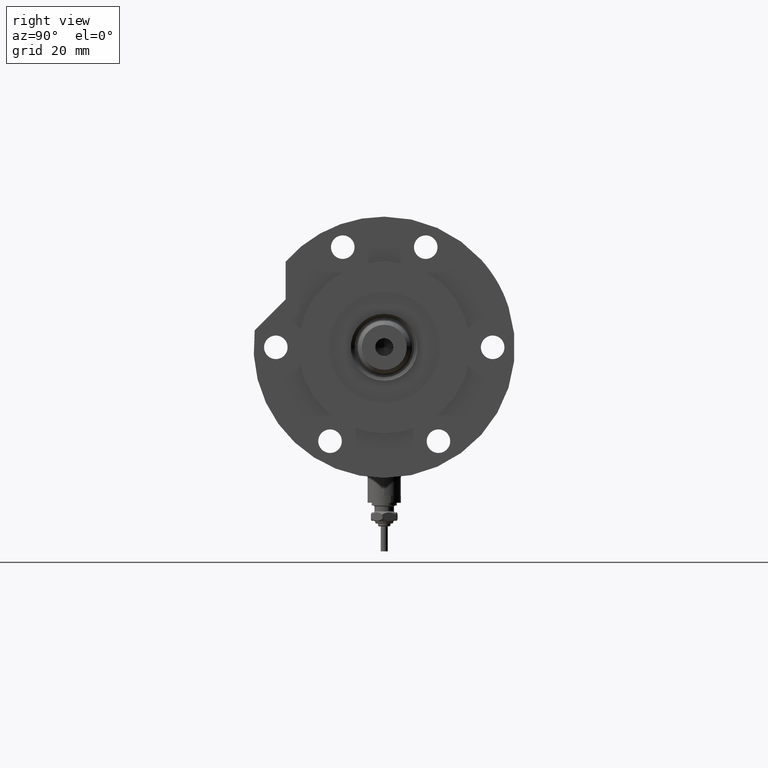
[diagram: clean part render]
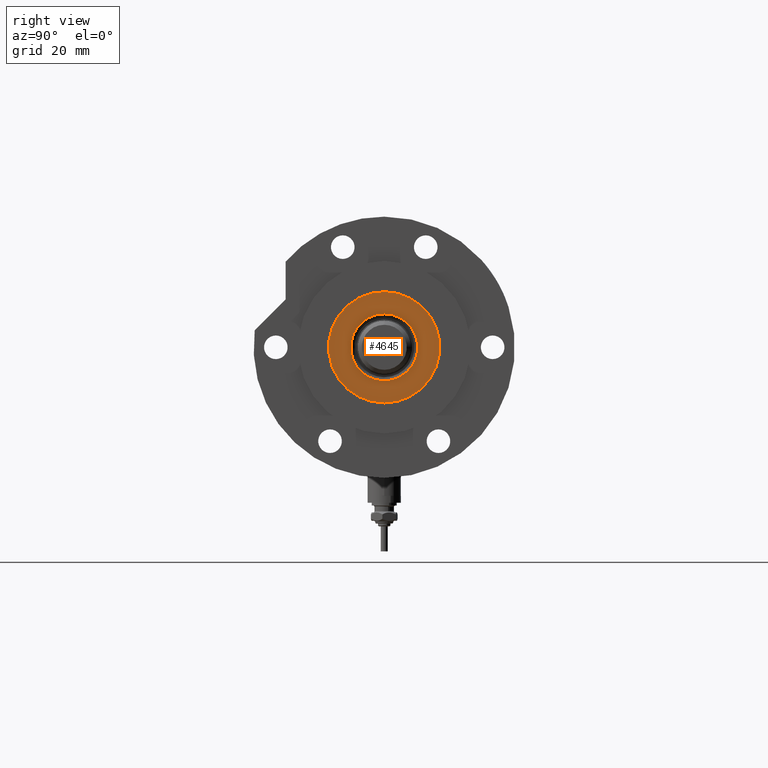
[diagram: same view with one face highlighted and labeled with its STEP entity id]
A machine part, right view. The second image highlights one B-rep face of the part: STEP entity #4645.
In plain terms, the highlighted planar face has unit normal (1, 0, -0).
Its self-contained STEP definition (entity closure, byte-faithful):
#19 = CIRCLE ( 'NONE', #143, 19.99999999999999645 ) ;
#113 = EDGE_LOOP ( 'NONE', ( #2888, #7330 ) ) ;
#120 = EDGE_CURVE ( 'NONE', #6263, #6694, #1236, .T. ) ;
#143 = AXIS2_PLACEMENT_3D ( 'NONE', #1498, #7541, #6332 ) ;
#435 = CARTESIAN_POINT ( 'NONE',  ( 0.000000000000000000, 0.000000000000000000, 33.50000000000000000 ) ) ;
#549 = DIRECTION ( 'NONE',  ( 1.000000000000000000, 0.000000000000000000, -0.000000000000000000 ) ) ;
#850 = AXIS2_PLACEMENT_3D ( 'NONE', #435, #7816, #4785 ) ;
#882 = ORIENTED_EDGE ( 'NONE', *, *, #6654, .T. ) ;
#891 = AXIS2_PLACEMENT_3D ( 'NONE', #2019, #6033, #549 ) ;
#1124 = CIRCLE ( 'NONE', #850, 12.05000000000000426 ) ;
#1192 = CARTESIAN_POINT ( 'NONE',  ( 0.000000000000000000, 0.000000000000000000, 33.50000000000000000 ) ) ;
#1221 = DIRECTION ( 'NONE',  ( -0.000000000000000000, -0.000000000000000000, -1.000000000000000000 ) ) ;
#1236 = CIRCLE ( 'NONE', #1506, 19.99999999999999645 ) ;
#1449 = CARTESIAN_POINT ( 'NONE',  ( -12.05000000000000426, 1.475699392972560823E-15, 33.50000000000000000 ) ) ;
#1498 = CARTESIAN_POINT ( 'NONE',  ( 0.000000000000000000, 0.000000000000000000, 33.50000000000000000 ) ) ;
#1506 = AXIS2_PLACEMENT_3D ( 'NONE', #7467, #3717, #2476 ) ;
#1547 = CIRCLE ( 'NONE', #7050, 12.05000000000000426 ) ;
#2019 = CARTESIAN_POINT ( 'NONE',  ( 0.000000000000000000, 0.000000000000000000, 33.50000000000000000 ) ) ;
#2080 = VERTEX_POINT ( 'NONE', #3386 ) ;
#2272 = CARTESIAN_POINT ( 'NONE',  ( 19.99999999999999645, 2.449293598294706119E-15, 33.50000000000000000 ) ) ;
#2476 = DIRECTION ( 'NONE',  ( 1.000000000000000000, 0.000000000000000000, 0.000000000000000000 ) ) ;
#2570 = EDGE_CURVE ( 'NONE', #5836, #2080, #1124, .T. ) ;
#2888 = ORIENTED_EDGE ( 'NONE', *, *, #4378, .T. ) ;
#3136 = FACE_OUTER_BOUND ( 'NONE', #4803, .T. ) ;
#3386 = CARTESIAN_POINT ( 'NONE',  ( 12.05000000000000426, 0.000000000000000000, 33.50000000000000000 ) ) ;
#3657 = DIRECTION ( 'NONE',  ( 1.000000000000000000, 0.000000000000000000, 0.000000000000000000 ) ) ;
#3717 = DIRECTION ( 'NONE',  ( 0.000000000000000000, 0.000000000000000000, 1.000000000000000000 ) ) ;
#4311 = ORIENTED_EDGE ( 'NONE', *, *, #120, .T. ) ;
#4378 = EDGE_CURVE ( 'NONE', #2080, #5836, #1547, .T. ) ;
#4645 = ADVANCED_FACE ( 'NONE', ( #4782, #3136 ), #6906, .T. ) ;
#4782 = FACE_BOUND ( 'NONE', #113, .T. ) ;
#4785 = DIRECTION ( 'NONE',  ( 1.000000000000000000, 0.000000000000000000, 0.000000000000000000 ) ) ;
#4803 = EDGE_LOOP ( 'NONE', ( #882, #4311 ) ) ;
#5836 = VERTEX_POINT ( 'NONE', #1449 ) ;
#6033 = DIRECTION ( 'NONE',  ( 0.000000000000000000, 0.000000000000000000, 1.000000000000000000 ) ) ;
#6263 = VERTEX_POINT ( 'NONE', #2272 ) ;
#6332 = DIRECTION ( 'NONE',  ( 1.000000000000000000, 0.000000000000000000, 0.000000000000000000 ) ) ;
#6654 = EDGE_CURVE ( 'NONE', #6694, #6263, #19, .T. ) ;
#6694 = VERTEX_POINT ( 'NONE', #6835 ) ;
#6835 = CARTESIAN_POINT ( 'NONE',  ( -19.99999999999999645, 0.000000000000000000, 33.50000000000000000 ) ) ;
#6906 = PLANE ( 'NONE',  #891 ) ;
#7050 = AXIS2_PLACEMENT_3D ( 'NONE', #1192, #1221, #3657 ) ;
#7330 = ORIENTED_EDGE ( 'NONE', *, *, #2570, .T. ) ;
#7467 = CARTESIAN_POINT ( 'NONE',  ( 0.000000000000000000, 0.000000000000000000, 33.50000000000000000 ) ) ;
#7541 = DIRECTION ( 'NONE',  ( 0.000000000000000000, 0.000000000000000000, 1.000000000000000000 ) ) ;
#7816 = DIRECTION ( 'NONE',  ( -0.000000000000000000, -0.000000000000000000, -1.000000000000000000 ) ) ;